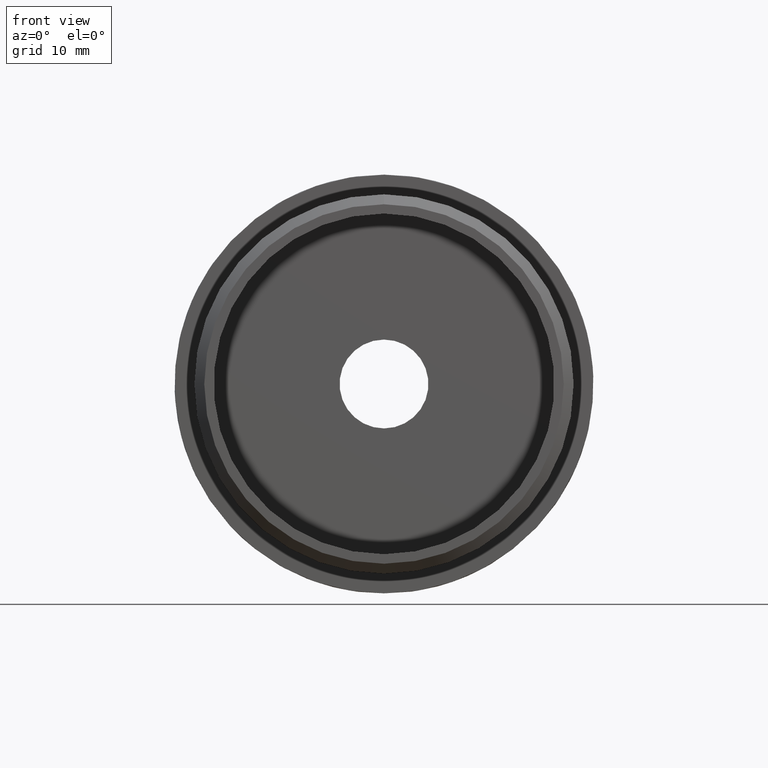
[diagram: clean part render]
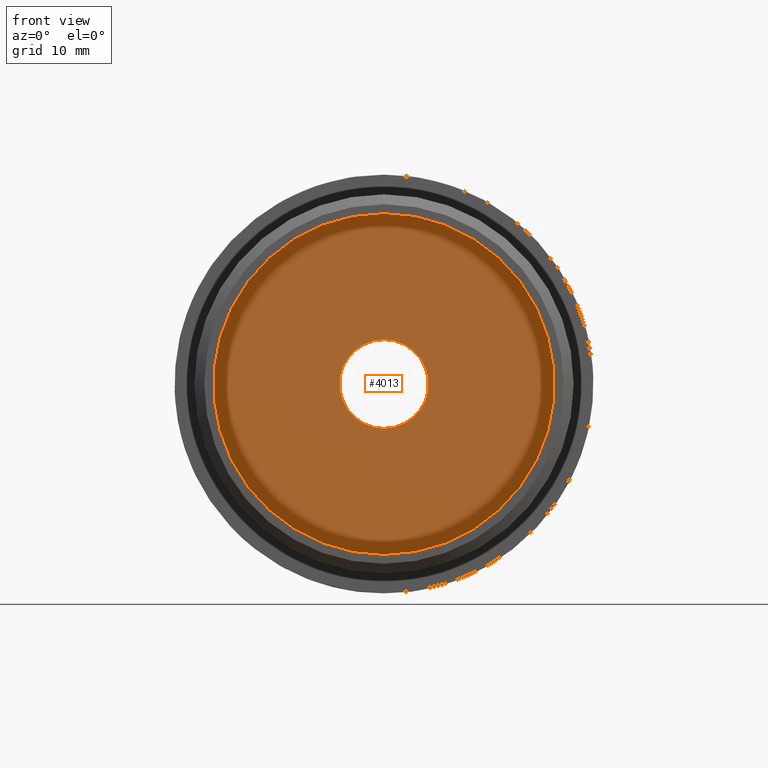
[diagram: same view with one face highlighted and labeled with its STEP entity id]
A machine part, front view. The second image highlights one B-rep face of the part: STEP entity #4013.
In plain terms, the highlighted planar face has unit normal (0, 1, 0).
Its self-contained STEP definition (entity closure, byte-faithful):
#197 = FACE_BOUND ( 'NONE', #5709, .T. ) ;
#415 = CARTESIAN_POINT ( 'NONE',  ( 2.112515728529183700E-015, 0.0000000000000000000, -17.24999999999999600 ) ) ;
#509 = ORIENTED_EDGE ( 'NONE', *, *, #1523, .T. ) ;
#897 = AXIS2_PLACEMENT_3D ( 'NONE', #11437, #11519, #5929 ) ;
#912 = CARTESIAN_POINT ( 'NONE',  ( 0.0000000000000000000, 0.0000000000000000000, 0.0000000000000000000 ) ) ;
#930 = DIRECTION ( 'NONE',  ( 0.0000000000000000000, -1.000000000000000000, 0.0000000000000000000 ) ) ;
#981 = VERTEX_POINT ( 'NONE', #415 ) ;
#1296 = AXIS2_PLACEMENT_3D ( 'NONE', #8501, #2908, #9450 ) ;
#1340 = ORIENTED_EDGE ( 'NONE', *, *, #10800, .F. ) ;
#1523 = EDGE_CURVE ( 'NONE', #981, #11002, #9368, .T. ) ;
#1832 = AXIS2_PLACEMENT_3D ( 'NONE', #4584, #11112, #5526 ) ;
#1855 = DIRECTION ( 'NONE',  ( 0.0000000000000000000, 0.0000000000000000000, -1.000000000000000000 ) ) ;
#2286 = CIRCLE ( 'NONE', #9340, 4.500000000000000000 ) ;
#2908 = DIRECTION ( 'NONE',  ( 0.0000000000000000000, -1.000000000000000000, 0.0000000000000000000 ) ) ;
#4013 = ADVANCED_FACE ( 'NONE', ( #197, #7651 ), #5004, .F. ) ;
#4365 = CIRCLE ( 'NONE', #11177, 4.500000000000000000 ) ;
#4584 = CARTESIAN_POINT ( 'NONE',  ( 0.0000000000000000000, 0.0000000000000000000, 0.0000000000000000000 ) ) ;
#4784 = ORIENTED_EDGE ( 'NONE', *, *, #5753, .F. ) ;
#5004 = PLANE ( 'NONE',  #897 ) ;
#5264 = CARTESIAN_POINT ( 'NONE',  ( 0.0000000000000000000, 0.0000000000000000000, -4.500000000000000000 ) ) ;
#5526 = DIRECTION ( 'NONE',  ( 0.0000000000000000000, 0.0000000000000000000, -1.000000000000000000 ) ) ;
#5709 = EDGE_LOOP ( 'NONE', ( #4784, #1340 ) ) ;
#5753 = EDGE_CURVE ( 'NONE', #10724, #7129, #2286, .T. ) ;
#5929 = DIRECTION ( 'NONE',  ( 0.0000000000000000000, -0.0000000000000000000, 1.000000000000000000 ) ) ;
#6525 = ORIENTED_EDGE ( 'NONE', *, *, #11868, .T. ) ;
#6529 = CARTESIAN_POINT ( 'NONE',  ( 0.0000000000000000000, 0.0000000000000000000, 0.0000000000000000000 ) ) ;
#6779 = CARTESIAN_POINT ( 'NONE',  ( 5.510910596163088600E-016, 0.0000000000000000000, 4.500000000000000000 ) ) ;
#7129 = VERTEX_POINT ( 'NONE', #6779 ) ;
#7195 = CARTESIAN_POINT ( 'NONE',  ( 0.0000000000000000000, 0.0000000000000000000, 17.24999999999999600 ) ) ;
#7448 = DIRECTION ( 'NONE',  ( 0.0000000000000000000, -1.000000000000000000, 0.0000000000000000000 ) ) ;
#7465 = DIRECTION ( 'NONE',  ( 0.0000000000000000000, 0.0000000000000000000, -1.000000000000000000 ) ) ;
#7651 = FACE_OUTER_BOUND ( 'NONE', #10139, .T. ) ;
#8501 = CARTESIAN_POINT ( 'NONE',  ( 0.0000000000000000000, 0.0000000000000000000, 0.0000000000000000000 ) ) ;
#9340 = AXIS2_PLACEMENT_3D ( 'NONE', #6529, #930, #7465 ) ;
#9368 = CIRCLE ( 'NONE', #1832, 17.24999999999999600 ) ;
#9450 = DIRECTION ( 'NONE',  ( 0.0000000000000000000, 0.0000000000000000000, -1.000000000000000000 ) ) ;
#10139 = EDGE_LOOP ( 'NONE', ( #6525, #509 ) ) ;
#10724 = VERTEX_POINT ( 'NONE', #5264 ) ;
#10800 = EDGE_CURVE ( 'NONE', #7129, #10724, #4365, .T. ) ;
#11002 = VERTEX_POINT ( 'NONE', #7195 ) ;
#11112 = DIRECTION ( 'NONE',  ( 0.0000000000000000000, -1.000000000000000000, 0.0000000000000000000 ) ) ;
#11177 = AXIS2_PLACEMENT_3D ( 'NONE', #912, #7448, #1855 ) ;
#11307 = CIRCLE ( 'NONE', #1296, 17.24999999999999600 ) ;
#11437 = CARTESIAN_POINT ( 'NONE',  ( 0.0000000000000000000, 0.0000000000000000000, 0.0000000000000000000 ) ) ;
#11519 = DIRECTION ( 'NONE',  ( 0.0000000000000000000, 1.000000000000000000, 0.0000000000000000000 ) ) ;
#11868 = EDGE_CURVE ( 'NONE', #11002, #981, #11307, .T. ) ;